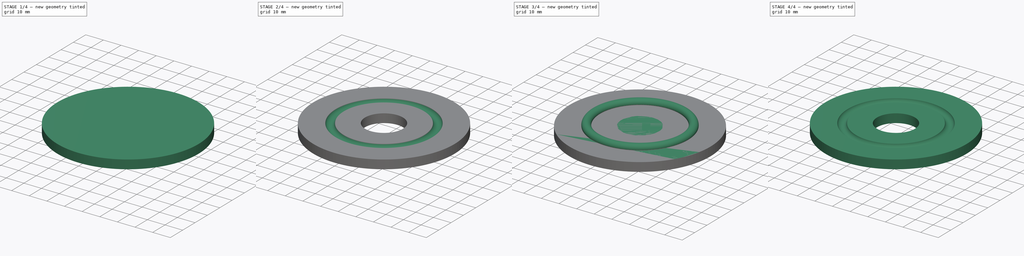
[diagram: build sequence overview — one tinted view per stage of 4, left to right]
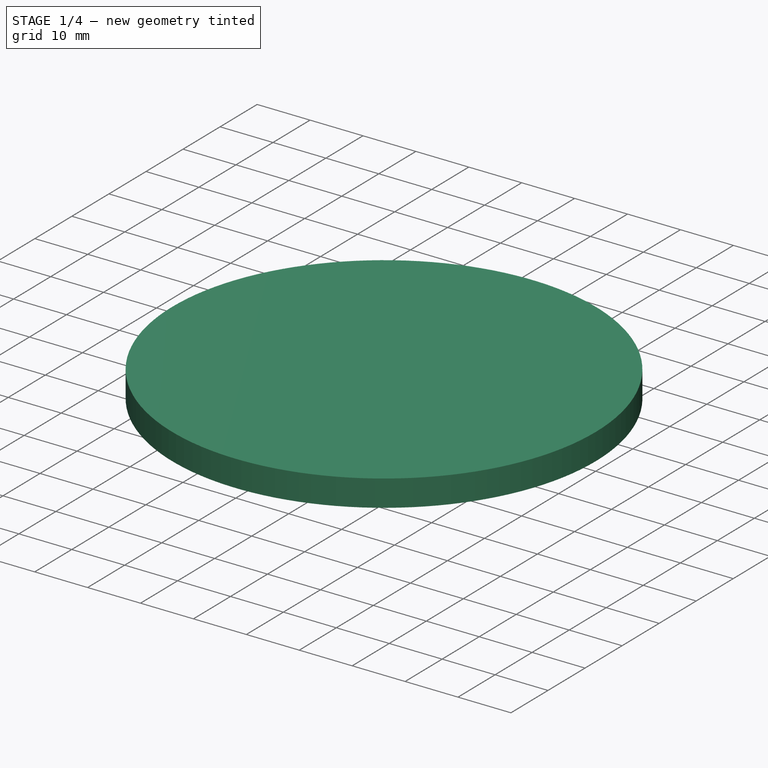
[diagram: stage 1 of 4 — iso view after this stage's code; geometry added in this stage tinted green]
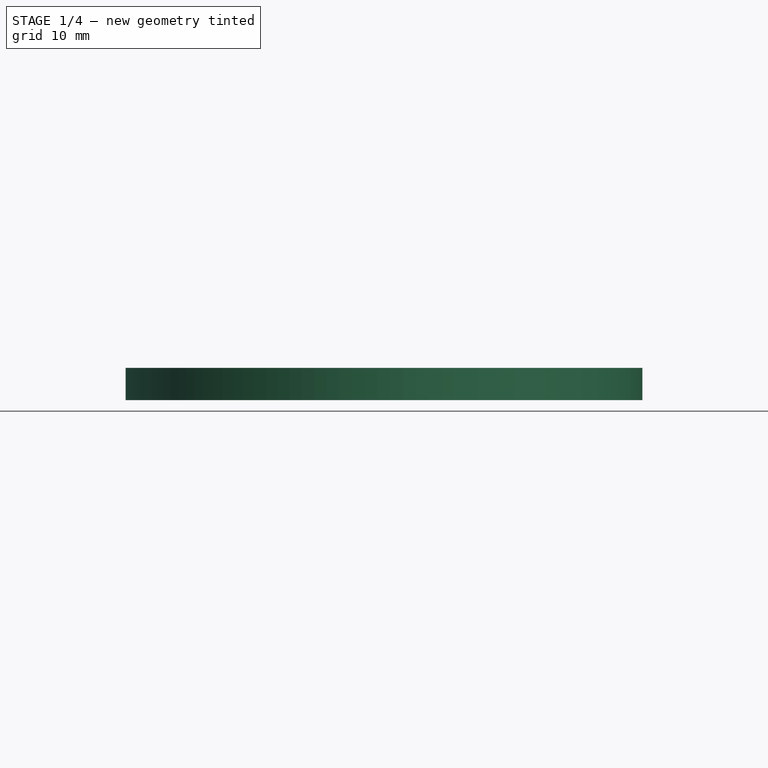
[diagram: stage 1 of 4 — front view after this stage's code; geometry added in this stage tinted green]
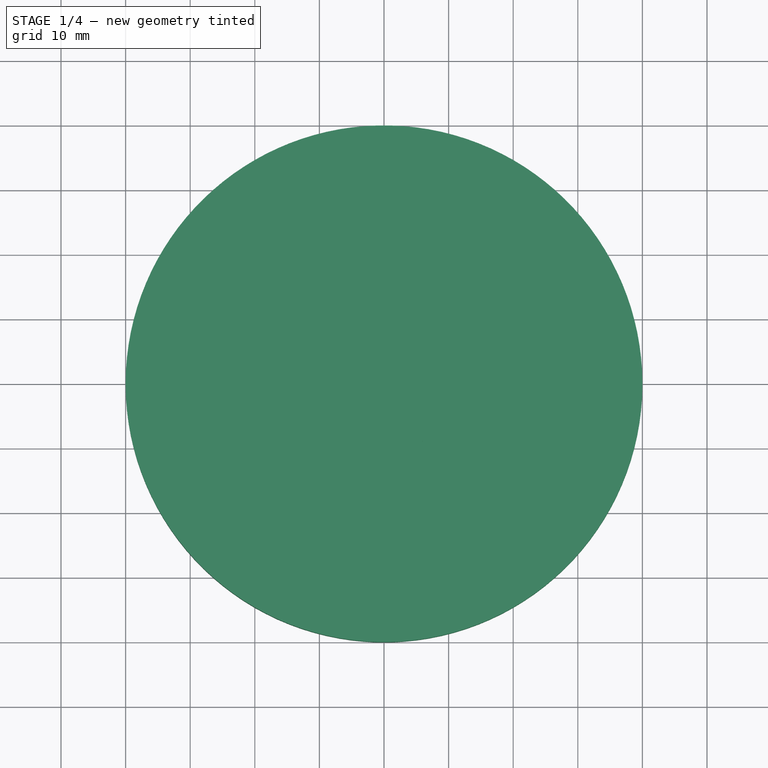
[diagram: stage 1 of 4 — top view after this stage's code; geometry added in this stage tinted green]
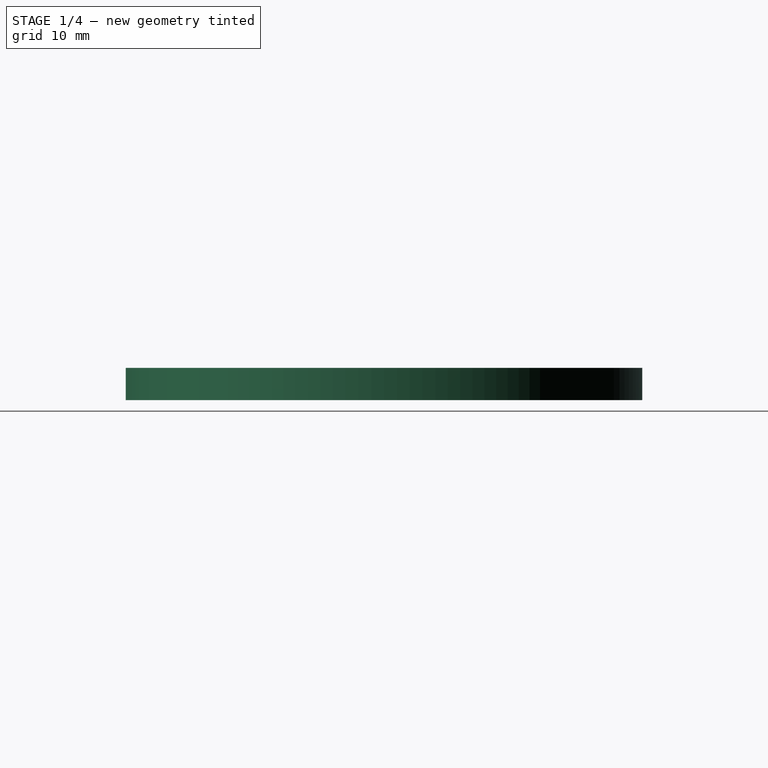
[diagram: stage 1 of 4 — right view after this stage's code; geometry added in this stage tinted green]
FCSTD DOCUMENT  (FreeCAD 0.16R6712 (Git))
Label: ls_bearing_top
License: All rights reserved
LicenseURL: http://en.wikipedia.org/wiki/All_rights_reserved
objects: Sketcher::SketchObject×6, Part::Cut×4, Part::Revolution×2, PartDesign::Pad×2, Part::Extrusion×2
note: 18 computed .brp shape members not serialized (recipe doc carries the construction recipe); baked Part::Feature solids carry a one-line shape summary decoded from their .brp

FEATURE [Sketcher::SketchObject] Sketch007  label="hub_hole001"
  sketch-geometry (1):
    g0: Circle CenterX=0 CenterY=0 CenterZ=0 NormalX=0 NormalY=0 NormalZ=1 Radius=10.761
  constraints (1):
    c: Coincident(g0,g-1)
FEATURE [Sketcher::SketchObject] Sketch008  label="Top2d001"
  sketch-geometry (1):
    g0: Circle CenterX=0 CenterY=0 CenterZ=0 NormalX=0 NormalY=0 NormalZ=1 Radius=40
  constraints (2):
    c: Radius(g0) = 40
    c: Coincident(g0,g-1)
FEATURE [Part::Extrusion] Extrude001  label="hub_hole_ex001"
  Base = -> Sketch007
  Dir = (0,0,5)
  Solid = true
FEATURE [PartDesign::Pad] Pad002  label="top005"
  Length = 5
  Length2 = 100
  Sketch = -> Sketch008
  Type = 0
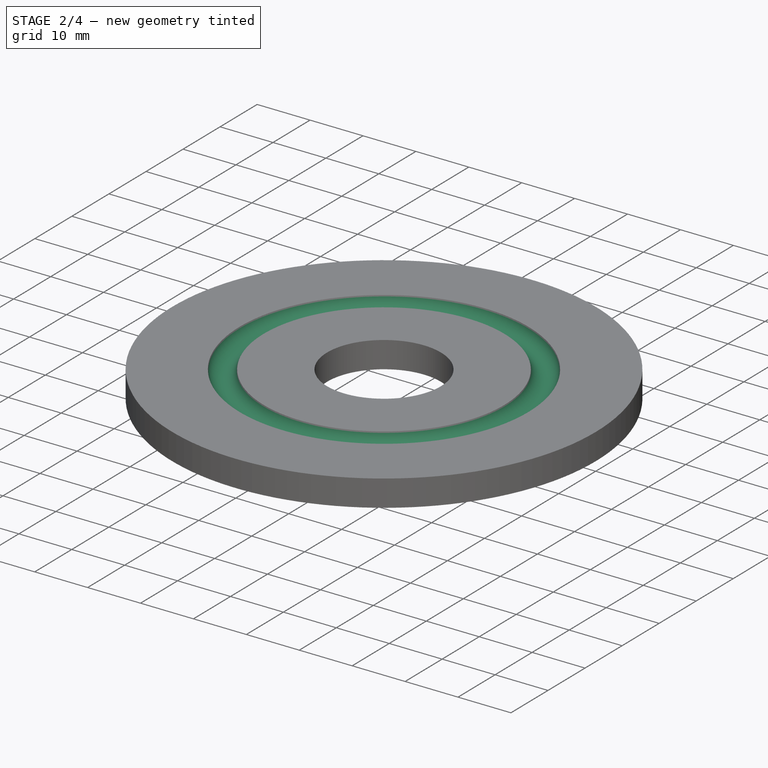
[diagram: stage 2 of 4 — iso view after this stage's code; geometry added in this stage tinted green]
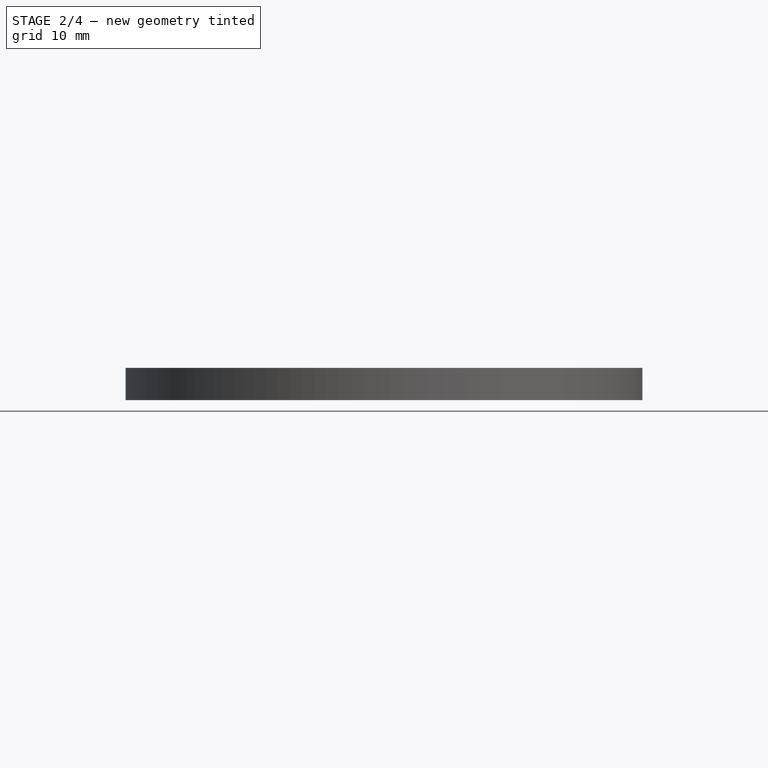
[diagram: stage 2 of 4 — front view after this stage's code; geometry added in this stage tinted green]
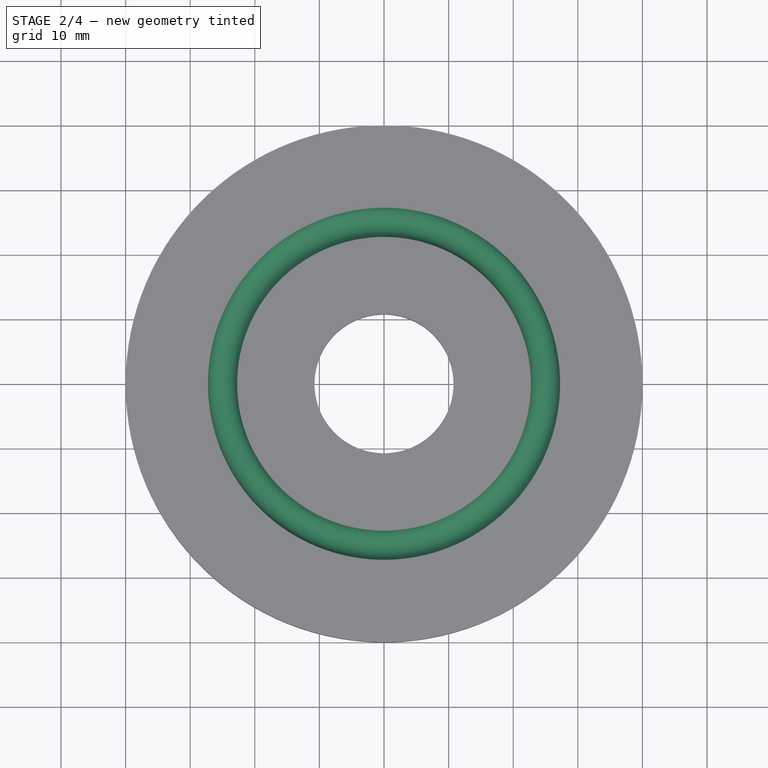
[diagram: stage 2 of 4 — top view after this stage's code; geometry added in this stage tinted green]
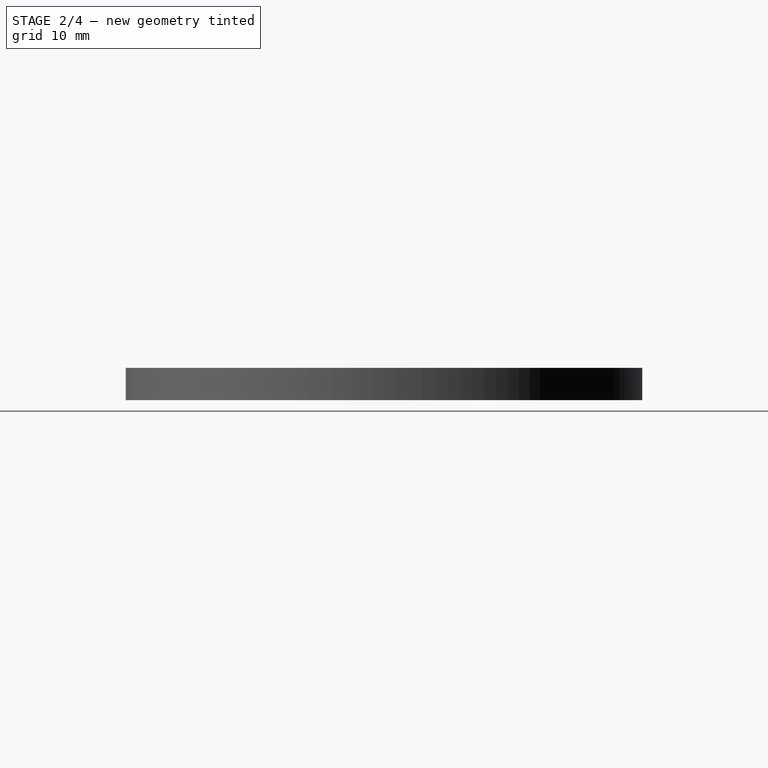
[diagram: stage 2 of 4 — right view after this stage's code; geometry added in this stage tinted green]
FEATURE [Sketcher::SketchObject] Sketch006  label="channel_top001"
  Placement = pos=(0,0,0) rot=(1,0,0;1.5708rad)
  sketch-geometry (1):
    g0: Circle CenterX=25 CenterY=5.4 CenterZ=0 NormalX=0 NormalY=0 NormalZ=1 Radius=2.3
  constraints (3):
    c: Radius(g0) = 2.3
    c: DistanceX(g0) = 25
    c: DistanceY(g-1,g0) = 5.4
FEATURE [Part::Revolution] Revolve001
  Angle = 360
  Axis = (0,0,1)
  Base = (0,0,0)
  Solid = true
  Source = -> Sketch006
FEATURE [Part::Cut] Cut003  label="top003"
  Base = -> Pad002
  Tool = -> Extrude001
FEATURE [Part::Cut] Cut004  label="top004"
  Base = -> Cut003
  Tool = -> Revolve001
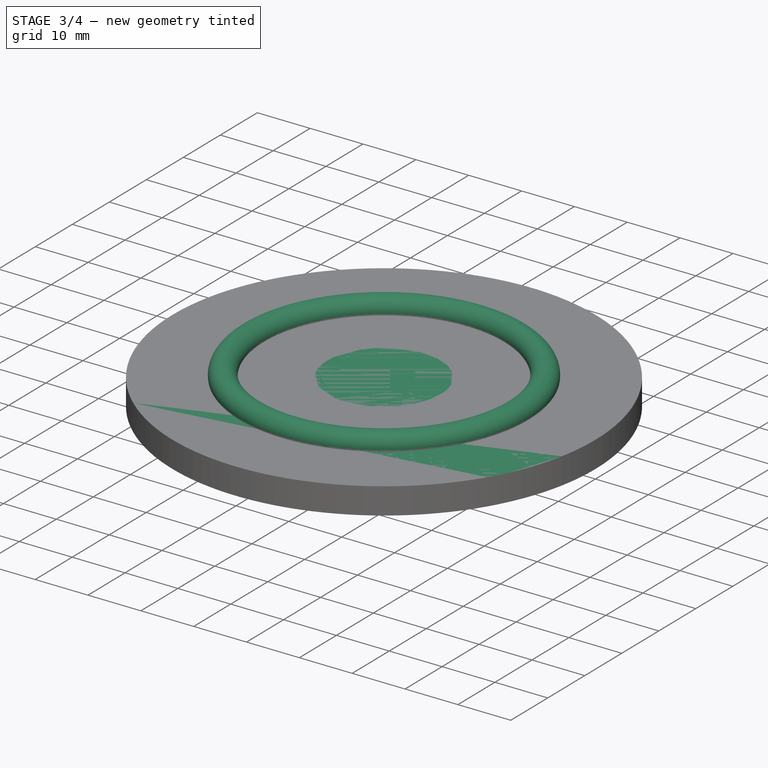
[diagram: stage 3 of 4 — iso view after this stage's code; geometry added in this stage tinted green]
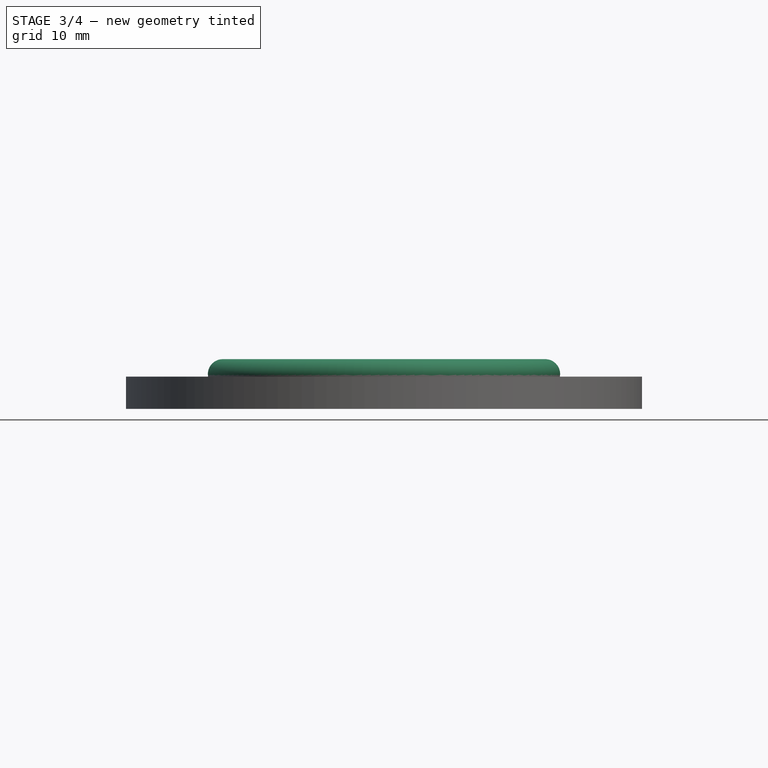
[diagram: stage 3 of 4 — front view after this stage's code; geometry added in this stage tinted green]
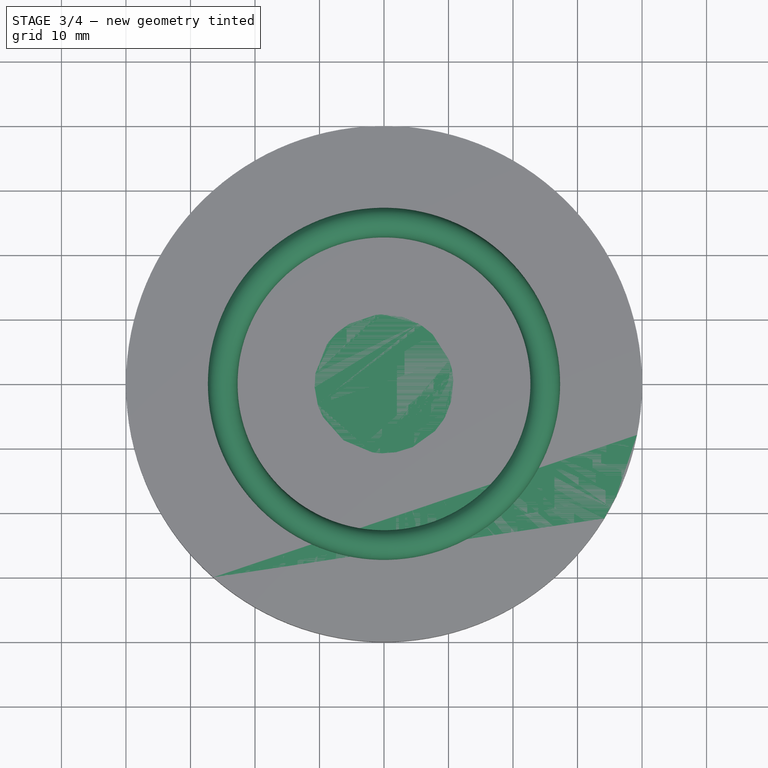
[diagram: stage 3 of 4 — top view after this stage's code; geometry added in this stage tinted green]
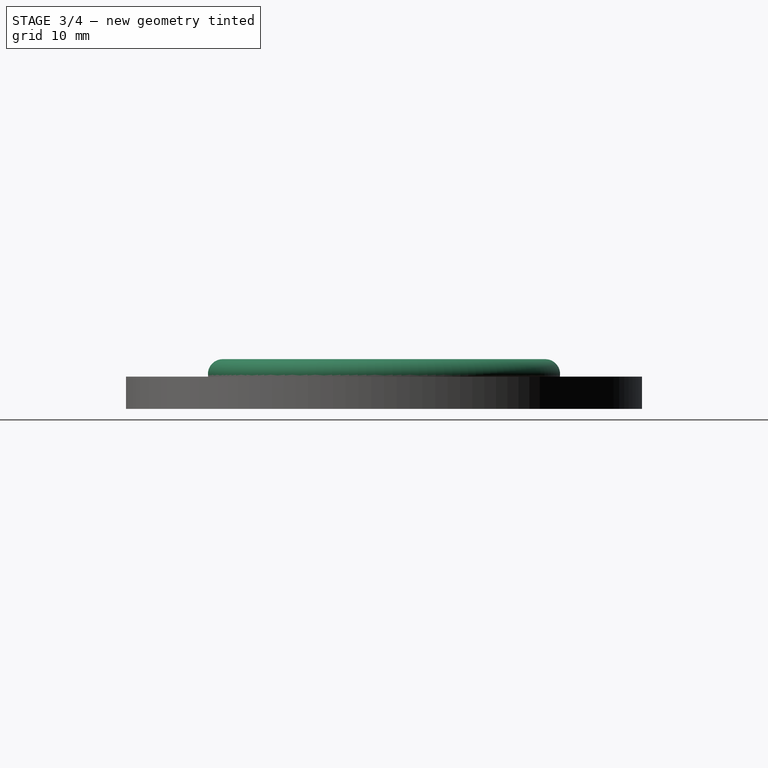
[diagram: stage 3 of 4 — right view after this stage's code; geometry added in this stage tinted green]
FEATURE [Sketcher::SketchObject] Sketch003  label="channel_top"
  Placement = pos=(0,0,0) rot=(1,0,0;1.5708rad)
  sketch-geometry (1):
    g0: Circle CenterX=25 CenterY=5.4 CenterZ=0 NormalX=0 NormalY=0 NormalZ=1 Radius=2.3
  constraints (3):
    c: Radius(g0) = 2.3
    c: DistanceX(g0) = 25
    c: DistanceY(g-1,g0) = 5.4
FEATURE [Part::Revolution] Revolve
  Angle = 360
  Axis = (0,0,1)
  Base = (0,0,0)
  Solid = true
  Source = -> Sketch003
FEATURE [Sketcher::SketchObject] Sketch004  label="Top2d"
  sketch-geometry (1):
    g0: Circle CenterX=0 CenterY=0 CenterZ=0 NormalX=0 NormalY=0 NormalZ=1 Radius=40
  constraints (2):
    c: Radius(g0) = 40
    c: Coincident(g0,g-1)
FEATURE [PartDesign::Pad] Pad001  label="top"
  Length = 5
  Length2 = 100
  Sketch = -> Sketch004
  Type = 0
FEATURE [Sketcher::SketchObject] Sketch005  label="hub_hole"
  sketch-geometry (1):
    g0: Circle CenterX=0 CenterY=0 CenterZ=0 NormalX=0 NormalY=0 NormalZ=1 Radius=10.761
  constraints (1):
    c: Coincident(g0,g-1)
FEATURE [Part::Extrusion] Extrude  label="hub_hole_ex"
  Base = -> Sketch005
  Dir = (0,0,5)
  Solid = true
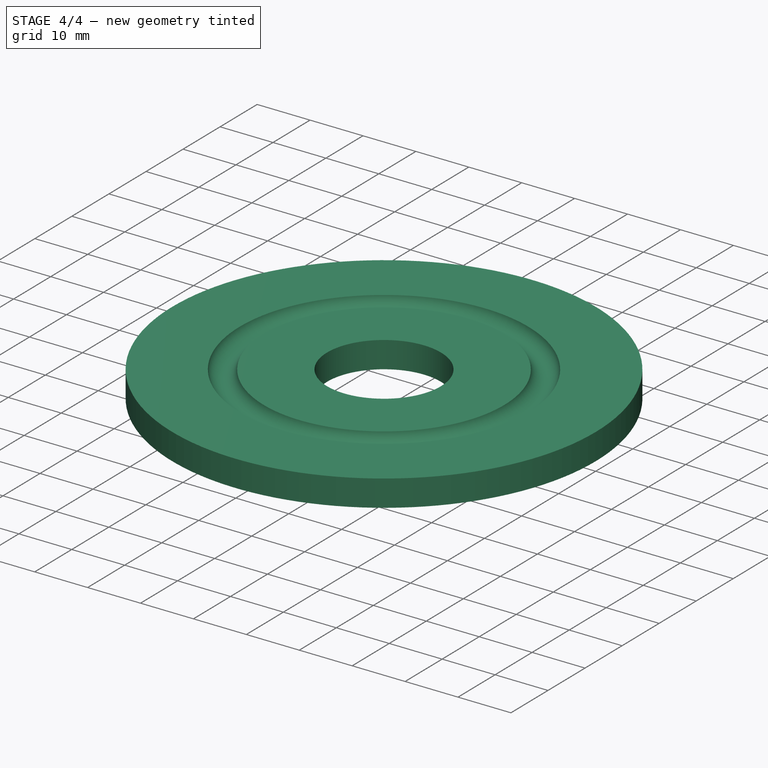
[diagram: stage 4 of 4 — iso view after this stage's code; geometry added in this stage tinted green]
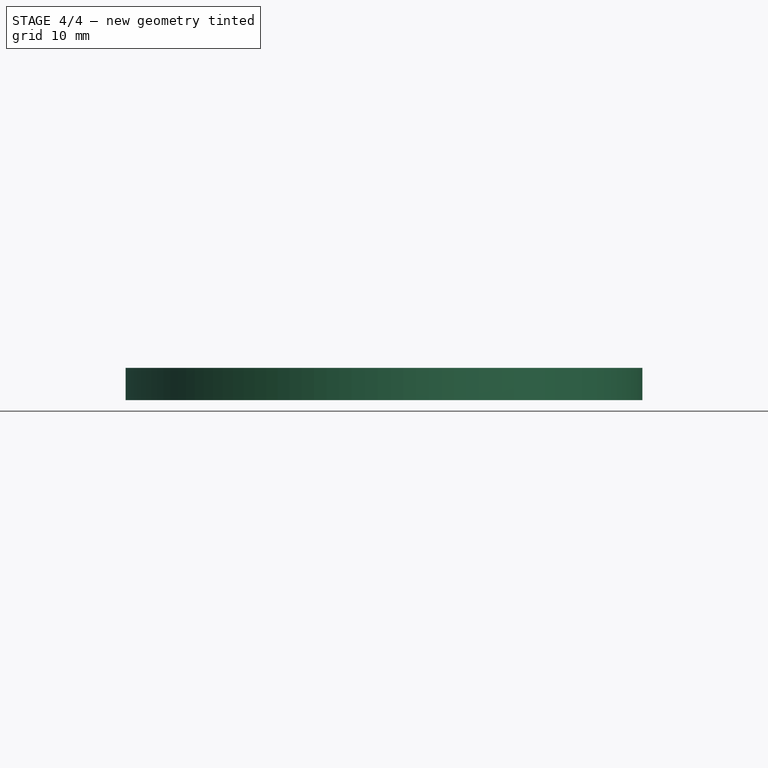
[diagram: stage 4 of 4 — front view after this stage's code; geometry added in this stage tinted green]
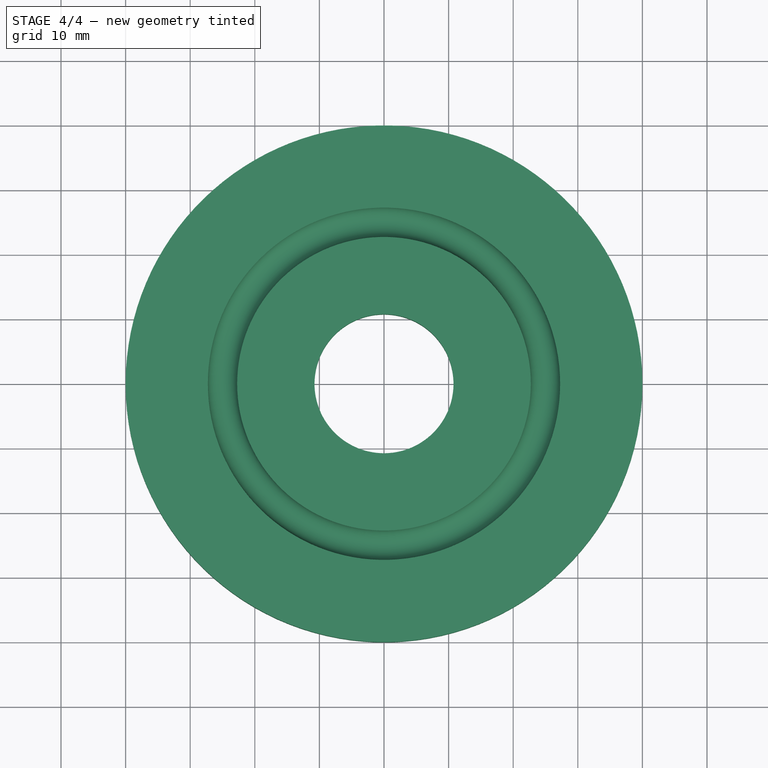
[diagram: stage 4 of 4 — top view after this stage's code; geometry added in this stage tinted green]
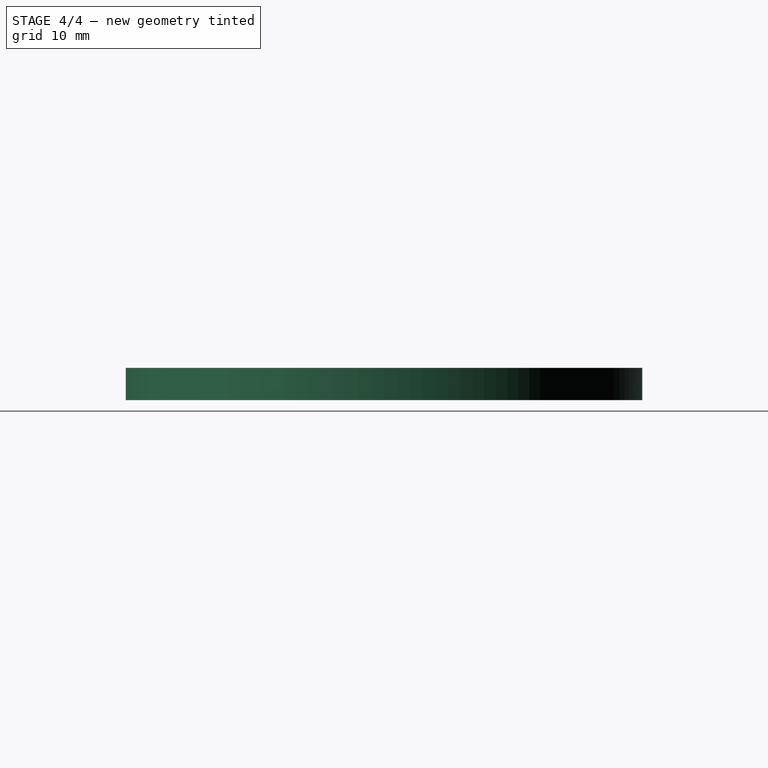
[diagram: stage 4 of 4 — right view after this stage's code; geometry added in this stage tinted green]
FEATURE [Part::Cut] Cut001  label="top002"
  Base = -> Pad001
  Tool = -> Extrude
FEATURE [Part::Cut] Cut002  label="top001"
  Base = -> Cut001
  Tool = -> Revolve
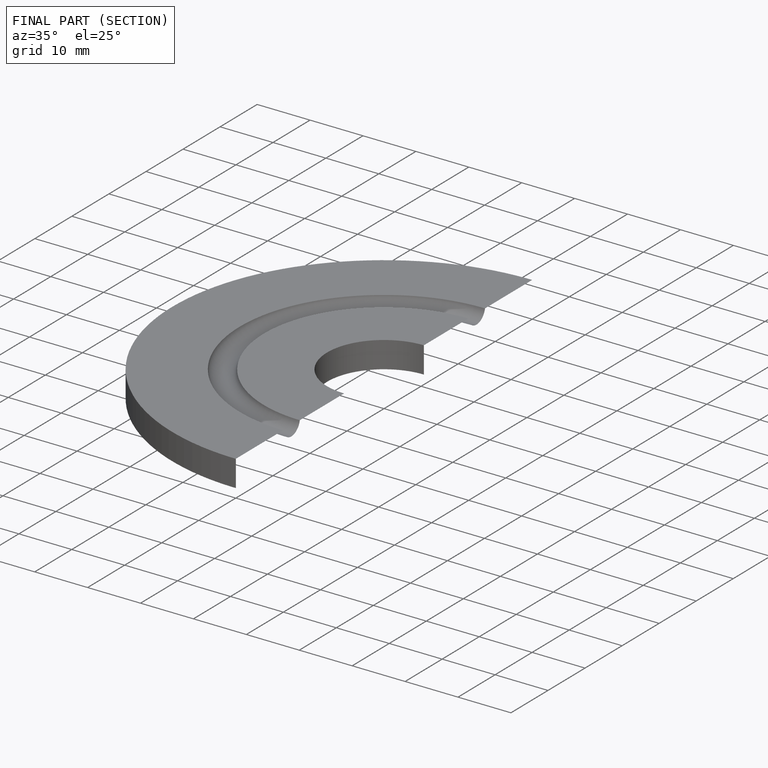
[diagram: finished part — half-section view (interior)]
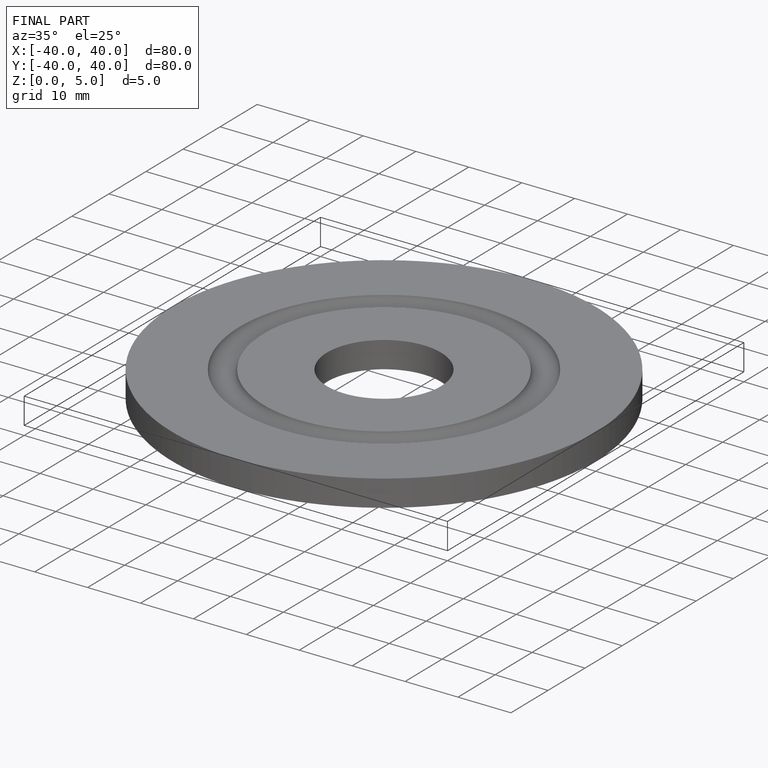
[diagram: finished part — iso view with bounding-box wireframe]
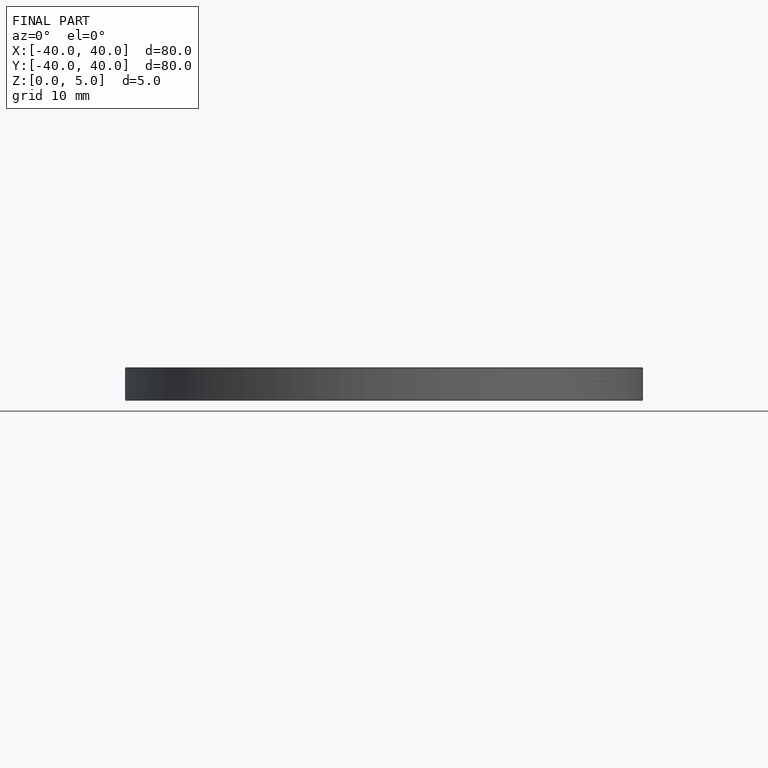
[diagram: finished part — front view with bounding-box wireframe]
